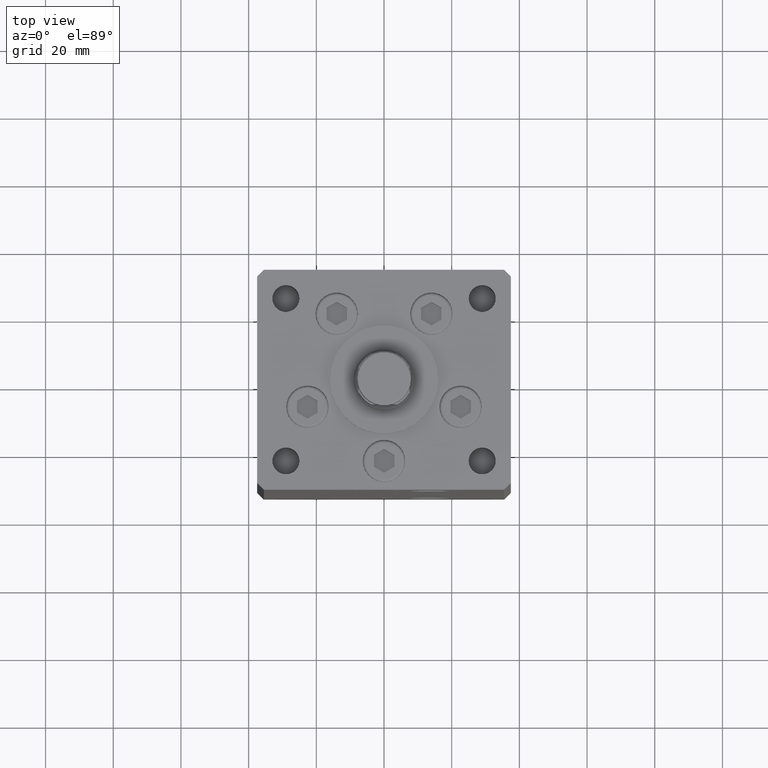
[diagram: clean part render]
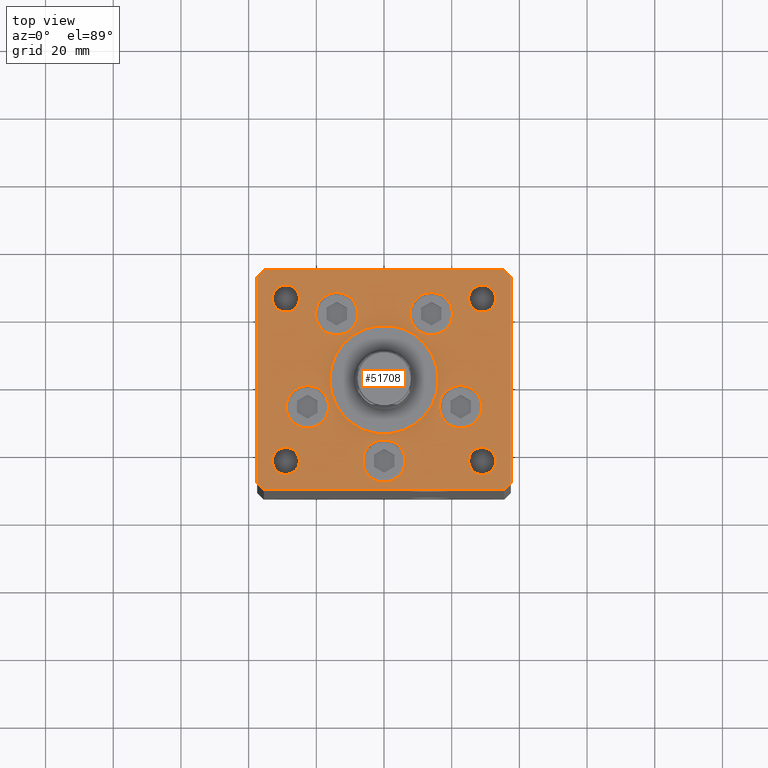
[diagram: same view with one face highlighted and labeled with its STEP entity id]
A machine part, top view. The second image highlights one B-rep face of the part: STEP entity #51708.
In plain terms, the highlighted planar face has unit normal (0, 0, 1).
Its self-contained STEP definition (entity closure, byte-faithful):
#36 = EDGE_CURVE ( 'NONE', #51348, #3882, #49446, .T. ) ;
#543 = DIRECTION ( 'NONE',  ( -1.000000000000000000, 0.000000000000000000, 0.000000000000000000 ) ) ;
#651 = ORIENTED_EDGE ( 'NONE', *, *, #35150, .F. ) ;
#1212 = AXIS2_PLACEMENT_3D ( 'NONE', #19672, #16388, #8403 ) ;
#1258 = LINE ( 'NONE', #42816, #10987 ) ;
#1269 = ORIENTED_EDGE ( 'NONE', *, *, #22580, .F. ) ;
#2040 = CARTESIAN_POINT ( 'NONE',  ( 33.00000000000000000, 24.00000000000000355, 0.000000000000000000 ) ) ;
#2289 = CARTESIAN_POINT ( 'NONE',  ( 35.50000000000000000, 32.49999999999999289, 0.000000000000000000 ) ) ;
#2386 = ORIENTED_EDGE ( 'NONE', *, *, #18901, .T. ) ;
#2393 = CARTESIAN_POINT ( 'NONE',  ( 16.37741699796953299, -8.000000000000000000, 0.000000000000000000 ) ) ;
#2436 = EDGE_LOOP ( 'NONE', ( #28894, #24146 ) ) ;
#3073 = EDGE_CURVE ( 'NONE', #27017, #15587, #51390, .T. ) ;
#3164 = DIRECTION ( 'NONE',  ( -0.000000000000000000, -0.000000000000000000, -1.000000000000000000 ) ) ;
#3416 = DIRECTION ( 'NONE',  ( -1.000000000000000000, 0.000000000000000000, 0.000000000000000000 ) ) ;
#3586 = EDGE_LOOP ( 'NONE', ( #13093, #20405 ) ) ;
#3599 = DIRECTION ( 'NONE',  ( 1.000000000000000000, 0.000000000000000000, 0.000000000000000000 ) ) ;
#3782 = ORIENTED_EDGE ( 'NONE', *, *, #43367, .T. ) ;
#3834 = DIRECTION ( 'NONE',  ( 1.000000000000000000, 0.000000000000000000, 0.000000000000000000 ) ) ;
#3882 = VERTEX_POINT ( 'NONE', #49772 ) ;
#3976 = VERTEX_POINT ( 'NONE', #2040 ) ;
#4154 = DIRECTION ( 'NONE',  ( 0.000000000000000000, 0.000000000000000000, 1.000000000000000000 ) ) ;
#5186 = DIRECTION ( 'NONE',  ( -1.000000000000000000, 0.000000000000000000, 0.000000000000000000 ) ) ;
#5270 = VERTEX_POINT ( 'NONE', #50295 ) ;
#5435 = AXIS2_PLACEMENT_3D ( 'NONE', #49175, #28380, #12643 ) ;
#5438 = ORIENTED_EDGE ( 'NONE', *, *, #40992, .T. ) ;
#5701 = EDGE_CURVE ( 'NONE', #34068, #48527, #24055, .T. ) ;
#5813 = EDGE_LOOP ( 'NONE', ( #49606, #28031, #24931, #28042, #2386, #7782, #5438, #3782 ) ) ;
#5900 = VECTOR ( 'NONE', #43582, 1000.000000000000000 ) ;
#6261 = CARTESIAN_POINT ( 'NONE',  ( -33.00000000000000000, 24.00000000000000711, 0.000000000000000000 ) ) ;
#6290 = CARTESIAN_POINT ( 'NONE',  ( -37.50000000000000000, -30.50000000000004263, 0.000000000000000000 ) ) ;
#6314 = CIRCLE ( 'NONE', #1212, 16.00000000000000355 ) ;
#6342 = CARTESIAN_POINT ( 'NONE',  ( 33.00000000000000000, -23.99999999999999645, 0.000000000000000000 ) ) ;
#6862 = EDGE_CURVE ( 'NONE', #3882, #51348, #7101, .T. ) ;
#6893 = VERTEX_POINT ( 'NONE', #41972 ) ;
#7101 = CIRCLE ( 'NONE', #35166, 4.000000000000000000 ) ;
#7127 = DIRECTION ( 'NONE',  ( 1.000000000000000000, 1.172770800660376149E-15, 0.000000000000000000 ) ) ;
#7530 = CARTESIAN_POINT ( 'NONE',  ( 29.00000000000000355, -23.99999999999999645, 0.000000000000000000 ) ) ;
#7782 = ORIENTED_EDGE ( 'NONE', *, *, #37003, .T. ) ;
#7797 = CARTESIAN_POINT ( 'NONE',  ( 25.00000000000000355, -23.99999999999999645, 0.000000000000000000 ) ) ;
#7838 = EDGE_LOOP ( 'NONE', ( #39265, #17150 ) ) ;
#8144 = DIRECTION ( 'NONE',  ( 1.000000000000000000, 0.000000000000000000, 0.000000000000000000 ) ) ;
#8329 = AXIS2_PLACEMENT_3D ( 'NONE', #20941, #17197, #13213 ) ;
#8403 = DIRECTION ( 'NONE',  ( 1.000000000000000000, 0.000000000000000000, 0.000000000000000000 ) ) ;
#8658 = CARTESIAN_POINT ( 'NONE',  ( -6.250000000000000000, -24.00000000000001066, 0.000000000000000000 ) ) ;
#8669 = DIRECTION ( 'NONE',  ( 1.000000000000000000, 0.000000000000000000, 0.000000000000000000 ) ) ;
#8941 = CARTESIAN_POINT ( 'NONE',  ( -37.50000000000001421, 30.50000000000000000, 0.000000000000000000 ) ) ;
#9063 = CARTESIAN_POINT ( 'NONE',  ( 29.00000000000000000, 24.00000000000000355, 0.000000000000000000 ) ) ;
#9098 = CARTESIAN_POINT ( 'NONE',  ( -35.50000000000001421, -32.50000000000000711, 0.000000000000000000 ) ) ;
#9164 = AXIS2_PLACEMENT_3D ( 'NONE', #32021, #39779, #24753 ) ;
#9213 = DIRECTION ( 'NONE',  ( 1.000000000000000000, 0.000000000000000000, 0.000000000000000000 ) ) ;
#9435 = CARTESIAN_POINT ( 'NONE',  ( -28.87741699796953654, -8.000000000000000000, 0.000000000000000000 ) ) ;
#10046 = EDGE_LOOP ( 'NONE', ( #15360, #43763 ) ) ;
#10434 = CIRCLE ( 'NONE', #35953, 6.250000000000000000 ) ;
#10457 = AXIS2_PLACEMENT_3D ( 'NONE', #20910, #25437, #8144 ) ;
#10522 = CARTESIAN_POINT ( 'NONE',  ( 24.99999999999999645, 24.00000000000000355, 0.000000000000000000 ) ) ;
#10706 = VECTOR ( 'NONE', #14730, 1000.000000000000000 ) ;
#10709 = CIRCLE ( 'NONE', #40496, 6.250000000000001776 ) ;
#10987 = VECTOR ( 'NONE', #42553, 1000.000000000000000 ) ;
#10990 = LINE ( 'NONE', #22472, #10706 ) ;
#11065 = CARTESIAN_POINT ( 'NONE',  ( 16.00000000000000355, -4.979459025271462852E-15, 0.000000000000000000 ) ) ;
#11607 = FACE_OUTER_BOUND ( 'NONE', #5813, .T. ) ;
#11716 = AXIS2_PLACEMENT_3D ( 'NONE', #9063, #20073, #3834 ) ;
#11919 = CARTESIAN_POINT ( 'NONE',  ( 29.00000000000000355, -23.99999999999999645, 0.000000000000000000 ) ) ;
#11922 = VERTEX_POINT ( 'NONE', #21860 ) ;
#12006 = EDGE_LOOP ( 'NONE', ( #38784, #52586 ) ) ;
#12118 = PLANE ( 'NONE',  #5435 ) ;
#12216 = AXIS2_PLACEMENT_3D ( 'NONE', #11919, #3164, #3416 ) ;
#12376 = CARTESIAN_POINT ( 'NONE',  ( 13.99106857963324124, 19.50000000000000000, 0.000000000000000000 ) ) ;
#12383 = FACE_BOUND ( 'NONE', #7838, .T. ) ;
#12560 = ORIENTED_EDGE ( 'NONE', *, *, #51859, .F. ) ;
#12635 = EDGE_CURVE ( 'NONE', #34182, #16374, #10434, .T. ) ;
#12643 = DIRECTION ( 'NONE',  ( 1.000000000000000000, 0.000000000000000000, 0.000000000000000000 ) ) ;
#13093 = ORIENTED_EDGE ( 'NONE', *, *, #52605, .F. ) ;
#13201 = DIRECTION ( 'NONE',  ( 2.275047181608926165E-16, -1.000000000000000000, 0.000000000000000000 ) ) ;
#13213 = DIRECTION ( 'NONE',  ( 1.000000000000000000, 0.000000000000000000, 0.000000000000000000 ) ) ;
#13276 = EDGE_CURVE ( 'NONE', #40608, #5270, #30861, .T. ) ;
#14013 = DIRECTION ( 'NONE',  ( 0.7071067811865512365, -0.7071067811865439090, 0.000000000000000000 ) ) ;
#14538 = DIRECTION ( 'NONE',  ( 0.000000000000000000, 0.000000000000000000, 1.000000000000000000 ) ) ;
#14655 = CARTESIAN_POINT ( 'NONE',  ( 37.50000000000000711, -30.49999999999992895, 0.000000000000000000 ) ) ;
#14721 = CIRCLE ( 'NONE', #10457, 6.250000000000001776 ) ;
#14730 = DIRECTION ( 'NONE',  ( 0.000000000000000000, 1.000000000000000000, 0.000000000000000000 ) ) ;
#15144 = CIRCLE ( 'NONE', #8329, 6.250000000000000000 ) ;
#15218 = CIRCLE ( 'NONE', #18595, 6.250000000000001776 ) ;
#15317 = ORIENTED_EDGE ( 'NONE', *, *, #35397, .F. ) ;
#15360 = ORIENTED_EDGE ( 'NONE', *, *, #6862, .T. ) ;
#15386 = AXIS2_PLACEMENT_3D ( 'NONE', #49583, #28521, #543 ) ;
#15587 = VERTEX_POINT ( 'NONE', #22516 ) ;
#15605 = FACE_BOUND ( 'NONE', #41128, .T. ) ;
#15750 = CARTESIAN_POINT ( 'NONE',  ( -25.00000000000000355, -23.99999999999999645, 0.000000000000000000 ) ) ;
#15843 = CARTESIAN_POINT ( 'NONE',  ( -13.99106857963324124, 19.50000000000000000, 0.000000000000000000 ) ) ;
#15985 = CARTESIAN_POINT ( 'NONE',  ( -20.24106857963324302, 19.50000000000000000, 0.000000000000000000 ) ) ;
#16120 = FACE_BOUND ( 'NONE', #49942, .T. ) ;
#16316 = VECTOR ( 'NONE', #7127, 1000.000000000000000 ) ;
#16374 = VERTEX_POINT ( 'NONE', #15985 ) ;
#16388 = DIRECTION ( 'NONE',  ( 0.000000000000000000, 0.000000000000000000, 1.000000000000000000 ) ) ;
#16549 = EDGE_CURVE ( 'NONE', #22317, #43901, #21573, .T. ) ;
#16550 = VECTOR ( 'NONE', #43559, 1000.000000000000000 ) ;
#17150 = ORIENTED_EDGE ( 'NONE', *, *, #13276, .F. ) ;
#17197 = DIRECTION ( 'NONE',  ( 0.000000000000000000, 0.000000000000000000, 1.000000000000000000 ) ) ;
#17303 = CARTESIAN_POINT ( 'NONE',  ( -32.99999999999999289, -23.99999999999999645, 0.000000000000000000 ) ) ;
#17758 = CARTESIAN_POINT ( 'NONE',  ( -16.00000000000000355, -6.938893903907228378E-15, 0.000000000000000000 ) ) ;
#18226 = VERTEX_POINT ( 'NONE', #17303 ) ;
#18582 = EDGE_CURVE ( 'NONE', #42723, #18226, #32718, .T. ) ;
#18595 = AXIS2_PLACEMENT_3D ( 'NONE', #41715, #4154, #8669 ) ;
#18901 = EDGE_CURVE ( 'NONE', #24515, #39419, #35551, .T. ) ;
#19588 = VERTEX_POINT ( 'NONE', #14655 ) ;
#19672 = CARTESIAN_POINT ( 'NONE',  ( 0.000000000000000000, -6.938893903907228378E-15, 0.000000000000000000 ) ) ;
#20073 = DIRECTION ( 'NONE',  ( 0.000000000000000000, 0.000000000000000000, 1.000000000000000000 ) ) ;
#20118 = DIRECTION ( 'NONE',  ( 0.000000000000000000, 0.000000000000000000, 1.000000000000000000 ) ) ;
#20175 = CARTESIAN_POINT ( 'NONE',  ( 37.50000000000000711, 30.50000000000001421, 0.000000000000000000 ) ) ;
#20405 = ORIENTED_EDGE ( 'NONE', *, *, #5701, .F. ) ;
#20758 = CIRCLE ( 'NONE', #48855, 6.250000000000000000 ) ;
#20793 = CARTESIAN_POINT ( 'NONE',  ( 35.50000000000000000, 32.49999999999999289, 0.000000000000000000 ) ) ;
#20840 = EDGE_CURVE ( 'NONE', #25271, #27017, #42534, .T. ) ;
#20910 = CARTESIAN_POINT ( 'NONE',  ( 22.62741699796953299, -8.000000000000000000, 0.000000000000000000 ) ) ;
#20941 = CARTESIAN_POINT ( 'NONE',  ( -13.99106857963324124, 19.50000000000000000, 0.000000000000000000 ) ) ;
#21319 = DIRECTION ( 'NONE',  ( 1.000000000000000000, 0.000000000000000000, 0.000000000000000000 ) ) ;
#21573 = CIRCLE ( 'NONE', #12216, 4.000000000000000000 ) ;
#21577 = CARTESIAN_POINT ( 'NONE',  ( 6.250000000000000000, -24.00000000000001066, 0.000000000000000000 ) ) ;
#21738 = DIRECTION ( 'NONE',  ( 0.000000000000000000, 0.000000000000000000, 1.000000000000000000 ) ) ;
#21840 = CARTESIAN_POINT ( 'NONE',  ( 0.000000000000000000, -6.938893903907228378E-15, 0.000000000000000000 ) ) ;
#21860 = CARTESIAN_POINT ( 'NONE',  ( 28.87741699796953654, -8.000000000000000000, 0.000000000000000000 ) ) ;
#21908 = CIRCLE ( 'NONE', #11716, 4.000000000000000000 ) ;
#21984 = CARTESIAN_POINT ( 'NONE',  ( 29.00000000000000000, 24.00000000000000355, 0.000000000000000000 ) ) ;
#22018 = CIRCLE ( 'NONE', #43317, 6.250000000000000000 ) ;
#22117 = EDGE_LOOP ( 'NONE', ( #15317, #651 ) ) ;
#22317 = VERTEX_POINT ( 'NONE', #6342 ) ;
#22472 = CARTESIAN_POINT ( 'NONE',  ( 37.50000000000000711, -30.49999999999992895, 0.000000000000000000 ) ) ;
#22516 = CARTESIAN_POINT ( 'NONE',  ( 35.50000000000001421, -32.49999999999992184, 0.000000000000000000 ) ) ;
#22580 = EDGE_CURVE ( 'NONE', #11922, #39645, #10709, .T. ) ;
#23666 = CIRCLE ( 'NONE', #9164, 6.250000000000000000 ) ;
#24055 = CIRCLE ( 'NONE', #49604, 16.00000000000000355 ) ;
#24146 = ORIENTED_EDGE ( 'NONE', *, *, #34124, .F. ) ;
#24262 = EDGE_CURVE ( 'NONE', #43901, #22317, #42973, .T. ) ;
#24392 = FACE_BOUND ( 'NONE', #2436, .T. ) ;
#24515 = VERTEX_POINT ( 'NONE', #20175 ) ;
#24642 = FACE_BOUND ( 'NONE', #22117, .T. ) ;
#24753 = DIRECTION ( 'NONE',  ( 1.000000000000000000, 0.000000000000000000, 0.000000000000000000 ) ) ;
#24931 = ORIENTED_EDGE ( 'NONE', *, *, #43598, .T. ) ;
#24997 = VERTEX_POINT ( 'NONE', #10522 ) ;
#25271 = VERTEX_POINT ( 'NONE', #42715 ) ;
#25434 = CARTESIAN_POINT ( 'NONE',  ( 0.000000000000000000, -24.00000000000001066, 0.000000000000000000 ) ) ;
#25437 = DIRECTION ( 'NONE',  ( 0.000000000000000000, 0.000000000000000000, 1.000000000000000000 ) ) ;
#26002 = EDGE_CURVE ( 'NONE', #19588, #24515, #10990, .T. ) ;
#26277 = CIRCLE ( 'NONE', #46735, 6.250000000000000000 ) ;
#26470 = AXIS2_PLACEMENT_3D ( 'NONE', #21984, #34511, #34780 ) ;
#27017 = VERTEX_POINT ( 'NONE', #9098 ) ;
#27072 = DIRECTION ( 'NONE',  ( 1.000000000000000000, 0.000000000000000000, 0.000000000000000000 ) ) ;
#27097 = DIRECTION ( 'NONE',  ( 0.000000000000000000, 0.000000000000000000, 1.000000000000000000 ) ) ;
#27921 = LINE ( 'NONE', #47944, #52025 ) ;
#27958 = AXIS2_PLACEMENT_3D ( 'NONE', #51075, #14538, #30792 ) ;
#28031 = ORIENTED_EDGE ( 'NONE', *, *, #3073, .T. ) ;
#28037 = DIRECTION ( 'NONE',  ( -1.000000000000000000, 0.000000000000000000, 0.000000000000000000 ) ) ;
#28042 = ORIENTED_EDGE ( 'NONE', *, *, #26002, .T. ) ;
#28081 = ORIENTED_EDGE ( 'NONE', *, *, #24262, .T. ) ;
#28380 = DIRECTION ( 'NONE',  ( -0.000000000000000000, 0.000000000000000000, 1.000000000000000000 ) ) ;
#28521 = DIRECTION ( 'NONE',  ( -0.000000000000000000, -0.000000000000000000, -1.000000000000000000 ) ) ;
#28639 = FACE_BOUND ( 'NONE', #10046, .T. ) ;
#28894 = ORIENTED_EDGE ( 'NONE', *, *, #18582, .F. ) ;
#28902 = FACE_BOUND ( 'NONE', #50471, .T. ) ;
#29624 = CIRCLE ( 'NONE', #27958, 3.999999999999996447 ) ;
#29685 = DIRECTION ( 'NONE',  ( 0.000000000000000000, 0.000000000000000000, 1.000000000000000000 ) ) ;
#30788 = VERTEX_POINT ( 'NONE', #8658 ) ;
#30792 = DIRECTION ( 'NONE',  ( 1.000000000000000000, 0.000000000000000000, 0.000000000000000000 ) ) ;
#30861 = CIRCLE ( 'NONE', #47059, 6.250000000000001776 ) ;
#30914 = ORIENTED_EDGE ( 'NONE', *, *, #16549, .T. ) ;
#30941 = ORIENTED_EDGE ( 'NONE', *, *, #31139, .F. ) ;
#31061 = AXIS2_PLACEMENT_3D ( 'NONE', #7530, #52315, #28037 ) ;
#31128 = VERTEX_POINT ( 'NONE', #21577 ) ;
#31139 = EDGE_CURVE ( 'NONE', #3976, #24997, #21908, .T. ) ;
#31356 = CARTESIAN_POINT ( 'NONE',  ( -29.00000000000000000, -23.99999999999999645, 0.000000000000000000 ) ) ;
#31842 = DIRECTION ( 'NONE',  ( 0.000000000000000000, 0.000000000000000000, 1.000000000000000000 ) ) ;
#32021 = CARTESIAN_POINT ( 'NONE',  ( 0.000000000000000000, -24.00000000000001066, 0.000000000000000000 ) ) ;
#32036 = ORIENTED_EDGE ( 'NONE', *, *, #48764, .F. ) ;
#32697 = CARTESIAN_POINT ( 'NONE',  ( 7.741068579633241242, 19.50000000000000000, 0.000000000000000000 ) ) ;
#32718 = CIRCLE ( 'NONE', #49751, 3.999999999999996447 ) ;
#33162 = EDGE_CURVE ( 'NONE', #16374, #34182, #15144, .T. ) ;
#33461 = CARTESIAN_POINT ( 'NONE',  ( 22.62741699796953299, -8.000000000000000000, 0.000000000000000000 ) ) ;
#33660 = EDGE_CURVE ( 'NONE', #30788, #31128, #23666, .T. ) ;
#34068 = VERTEX_POINT ( 'NONE', #11065 ) ;
#34124 = EDGE_CURVE ( 'NONE', #18226, #42723, #29624, .T. ) ;
#34182 = VERTEX_POINT ( 'NONE', #40626 ) ;
#34511 = DIRECTION ( 'NONE',  ( 0.000000000000000000, 0.000000000000000000, 1.000000000000000000 ) ) ;
#34780 = DIRECTION ( 'NONE',  ( 1.000000000000000000, 0.000000000000000000, 0.000000000000000000 ) ) ;
#35150 = EDGE_CURVE ( 'NONE', #49476, #6893, #22018, .T. ) ;
#35166 = AXIS2_PLACEMENT_3D ( 'NONE', #50241, #49455, #5186 ) ;
#35330 = DIRECTION ( 'NONE',  ( 0.000000000000000000, 0.000000000000000000, 1.000000000000000000 ) ) ;
#35397 = EDGE_CURVE ( 'NONE', #6893, #49476, #26277, .T. ) ;
#35551 = LINE ( 'NONE', #51831, #16550 ) ;
#35953 = AXIS2_PLACEMENT_3D ( 'NONE', #15843, #31842, #3599 ) ;
#36895 = FACE_BOUND ( 'NONE', #52067, .T. ) ;
#37003 = EDGE_CURVE ( 'NONE', #39419, #38709, #42789, .T. ) ;
#37297 = CARTESIAN_POINT ( 'NONE',  ( -37.50000000000001421, 30.50000000000000000, 0.000000000000000000 ) ) ;
#38110 = DIRECTION ( 'NONE',  ( 0.000000000000000000, 0.000000000000000000, 1.000000000000000000 ) ) ;
#38709 = VERTEX_POINT ( 'NONE', #49450 ) ;
#38784 = ORIENTED_EDGE ( 'NONE', *, *, #12635, .F. ) ;
#39265 = ORIENTED_EDGE ( 'NONE', *, *, #39701, .F. ) ;
#39419 = VERTEX_POINT ( 'NONE', #20793 ) ;
#39645 = VERTEX_POINT ( 'NONE', #2393 ) ;
#39701 = EDGE_CURVE ( 'NONE', #5270, #40608, #15218, .T. ) ;
#39779 = DIRECTION ( 'NONE',  ( 0.000000000000000000, 0.000000000000000000, 1.000000000000000000 ) ) ;
#40496 = AXIS2_PLACEMENT_3D ( 'NONE', #33461, #21738, #9213 ) ;
#40608 = VERTEX_POINT ( 'NONE', #9435 ) ;
#40626 = CARTESIAN_POINT ( 'NONE',  ( -7.741068579633241242, 19.50000000000000000, 0.000000000000000000 ) ) ;
#40916 = ORIENTED_EDGE ( 'NONE', *, *, #43427, .F. ) ;
#40992 = EDGE_CURVE ( 'NONE', #38709, #52364, #1258, .T. ) ;
#41128 = EDGE_LOOP ( 'NONE', ( #12560, #45140 ) ) ;
#41572 = DIRECTION ( 'NONE',  ( 0.000000000000000000, 0.000000000000000000, 1.000000000000000000 ) ) ;
#41715 = CARTESIAN_POINT ( 'NONE',  ( -22.62741699796953299, -8.000000000000000000, 0.000000000000000000 ) ) ;
#41972 = CARTESIAN_POINT ( 'NONE',  ( 20.24106857963324302, 19.50000000000000000, 0.000000000000000000 ) ) ;
#42104 = DIRECTION ( 'NONE',  ( 1.000000000000000000, 0.000000000000000000, 0.000000000000000000 ) ) ;
#42534 = LINE ( 'NONE', #6290, #45598 ) ;
#42553 = DIRECTION ( 'NONE',  ( -0.7071067811865524577, -0.7071067811865426878, 0.000000000000000000 ) ) ;
#42643 = VECTOR ( 'NONE', #13201, 1000.000000000000000 ) ;
#42715 = CARTESIAN_POINT ( 'NONE',  ( -37.50000000000000000, -30.50000000000004263, 0.000000000000000000 ) ) ;
#42723 = VERTEX_POINT ( 'NONE', #15750 ) ;
#42789 = LINE ( 'NONE', #2289, #5900 ) ;
#42816 = CARTESIAN_POINT ( 'NONE',  ( -35.50000000000000711, 32.49999999999997868, 0.000000000000000000 ) ) ;
#42973 = CIRCLE ( 'NONE', #31061, 4.000000000000000000 ) ;
#43317 = AXIS2_PLACEMENT_3D ( 'NONE', #12376, #20118, #52394 ) ;
#43367 = EDGE_CURVE ( 'NONE', #52364, #25271, #45463, .T. ) ;
#43427 = EDGE_CURVE ( 'NONE', #24997, #3976, #49465, .T. ) ;
#43559 = DIRECTION ( 'NONE',  ( -0.7071067811865524577, 0.7071067811865426878, 0.000000000000000000 ) ) ;
#43582 = DIRECTION ( 'NONE',  ( -1.000000000000000000, -1.954618001100627573E-16, 0.000000000000000000 ) ) ;
#43598 = EDGE_CURVE ( 'NONE', #15587, #19588, #27921, .T. ) ;
#43763 = ORIENTED_EDGE ( 'NONE', *, *, #36, .T. ) ;
#43901 = VERTEX_POINT ( 'NONE', #7797 ) ;
#44444 = DIRECTION ( 'NONE',  ( 0.7071067811865463515, 0.7071067811865487940, 0.000000000000000000 ) ) ;
#45140 = ORIENTED_EDGE ( 'NONE', *, *, #33660, .F. ) ;
#45463 = LINE ( 'NONE', #8941, #42643 ) ;
#45598 = VECTOR ( 'NONE', #14013, 1000.000000000000000 ) ;
#46389 = CARTESIAN_POINT ( 'NONE',  ( 13.99106857963324124, 19.50000000000000000, 0.000000000000000000 ) ) ;
#46503 = DIRECTION ( 'NONE',  ( 1.000000000000000000, 0.000000000000000000, 0.000000000000000000 ) ) ;
#46735 = AXIS2_PLACEMENT_3D ( 'NONE', #46389, #38110, #21319 ) ;
#47059 = AXIS2_PLACEMENT_3D ( 'NONE', #51078, #35330, #27072 ) ;
#47645 = DIRECTION ( 'NONE',  ( 1.000000000000000000, 0.000000000000000000, 0.000000000000000000 ) ) ;
#47662 = CARTESIAN_POINT ( 'NONE',  ( -35.50000000000001421, -32.50000000000000711, 0.000000000000000000 ) ) ;
#47944 = CARTESIAN_POINT ( 'NONE',  ( 35.50000000000001421, -32.49999999999992184, 0.000000000000000000 ) ) ;
#48527 = VERTEX_POINT ( 'NONE', #17758 ) ;
#48653 = FACE_BOUND ( 'NONE', #3586, .T. ) ;
#48764 = EDGE_CURVE ( 'NONE', #39645, #11922, #14721, .T. ) ;
#48855 = AXIS2_PLACEMENT_3D ( 'NONE', #25434, #29685, #46503 ) ;
#49175 = CARTESIAN_POINT ( 'NONE',  ( 0.000000000000000000, 0.000000000000000000, 0.000000000000000000 ) ) ;
#49446 = CIRCLE ( 'NONE', #15386, 4.000000000000000000 ) ;
#49450 = CARTESIAN_POINT ( 'NONE',  ( -35.50000000000000711, 32.49999999999997868, 0.000000000000000000 ) ) ;
#49455 = DIRECTION ( 'NONE',  ( -0.000000000000000000, -0.000000000000000000, -1.000000000000000000 ) ) ;
#49465 = CIRCLE ( 'NONE', #26470, 4.000000000000000000 ) ;
#49476 = VERTEX_POINT ( 'NONE', #32697 ) ;
#49583 = CARTESIAN_POINT ( 'NONE',  ( -29.00000000000000000, 24.00000000000000711, 0.000000000000000000 ) ) ;
#49604 = AXIS2_PLACEMENT_3D ( 'NONE', #21840, #41572, #42104 ) ;
#49606 = ORIENTED_EDGE ( 'NONE', *, *, #20840, .T. ) ;
#49751 = AXIS2_PLACEMENT_3D ( 'NONE', #31356, #27097, #47645 ) ;
#49772 = CARTESIAN_POINT ( 'NONE',  ( -25.00000000000000000, 24.00000000000000711, 0.000000000000000000 ) ) ;
#49942 = EDGE_LOOP ( 'NONE', ( #30914, #28081 ) ) ;
#50241 = CARTESIAN_POINT ( 'NONE',  ( -29.00000000000000000, 24.00000000000000711, 0.000000000000000000 ) ) ;
#50295 = CARTESIAN_POINT ( 'NONE',  ( -16.37741699796953299, -8.000000000000000000, 0.000000000000000000 ) ) ;
#50471 = EDGE_LOOP ( 'NONE', ( #30941, #40916 ) ) ;
#51075 = CARTESIAN_POINT ( 'NONE',  ( -29.00000000000000000, -23.99999999999999645, 0.000000000000000000 ) ) ;
#51078 = CARTESIAN_POINT ( 'NONE',  ( -22.62741699796953299, -8.000000000000000000, 0.000000000000000000 ) ) ;
#51348 = VERTEX_POINT ( 'NONE', #6261 ) ;
#51390 = LINE ( 'NONE', #47662, #16316 ) ;
#51708 = ADVANCED_FACE ( 'NONE', ( #48653, #52139, #24642, #36895, #15605, #12383, #28639, #28902, #24392, #11607, #16120 ), #12118, .T. ) ;
#51831 = CARTESIAN_POINT ( 'NONE',  ( 37.50000000000000711, 30.50000000000001421, 0.000000000000000000 ) ) ;
#51859 = EDGE_CURVE ( 'NONE', #31128, #30788, #20758, .T. ) ;
#52025 = VECTOR ( 'NONE', #44444, 1000.000000000000000 ) ;
#52067 = EDGE_LOOP ( 'NONE', ( #1269, #32036 ) ) ;
#52139 = FACE_BOUND ( 'NONE', #12006, .T. ) ;
#52315 = DIRECTION ( 'NONE',  ( -0.000000000000000000, -0.000000000000000000, -1.000000000000000000 ) ) ;
#52364 = VERTEX_POINT ( 'NONE', #37297 ) ;
#52394 = DIRECTION ( 'NONE',  ( 1.000000000000000000, 0.000000000000000000, 0.000000000000000000 ) ) ;
#52586 = ORIENTED_EDGE ( 'NONE', *, *, #33162, .F. ) ;
#52605 = EDGE_CURVE ( 'NONE', #48527, #34068, #6314, .T. ) ;